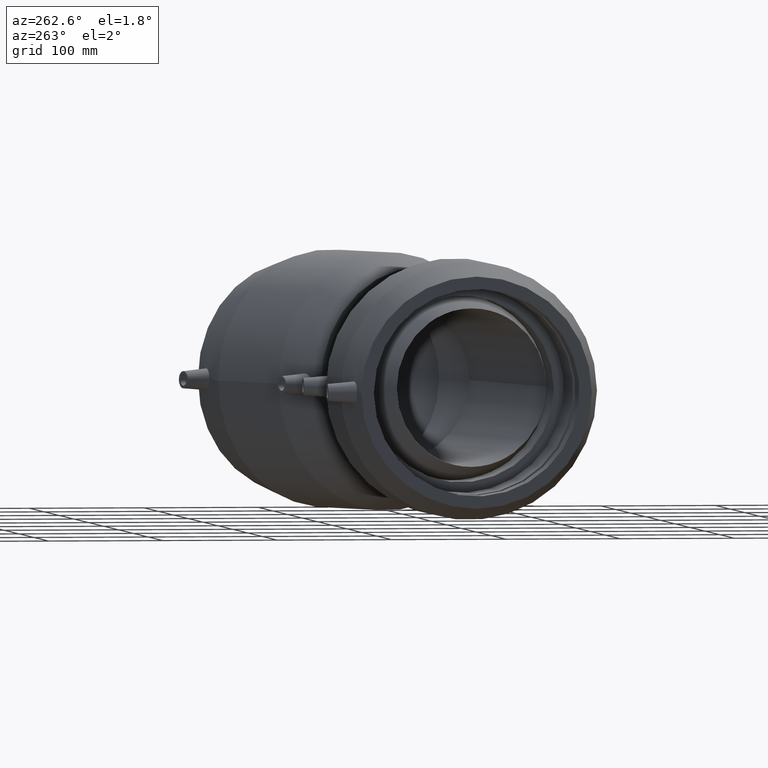
[diagram: clean part render]
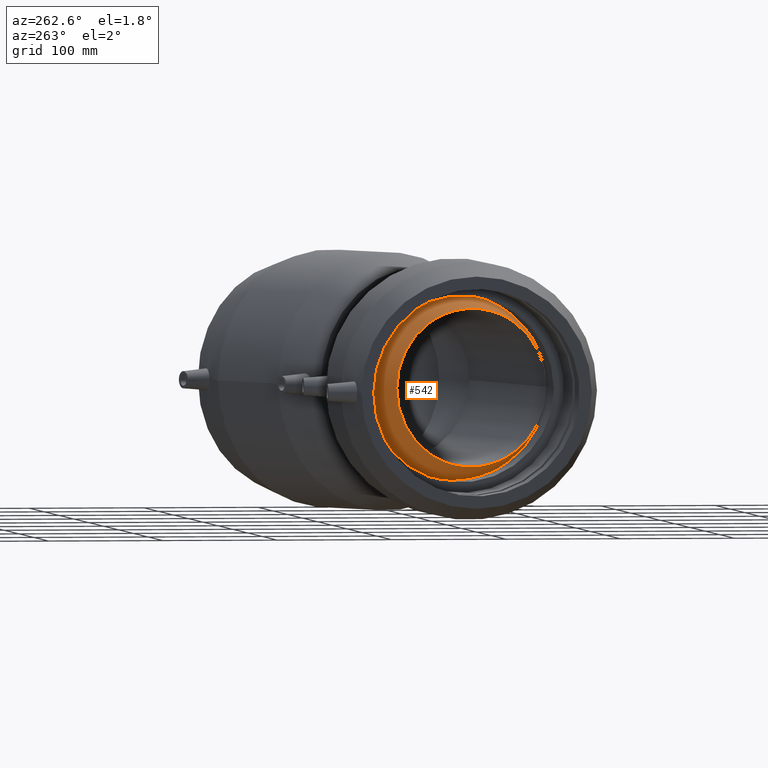
[diagram: same view with one face highlighted and labeled with its STEP entity id]
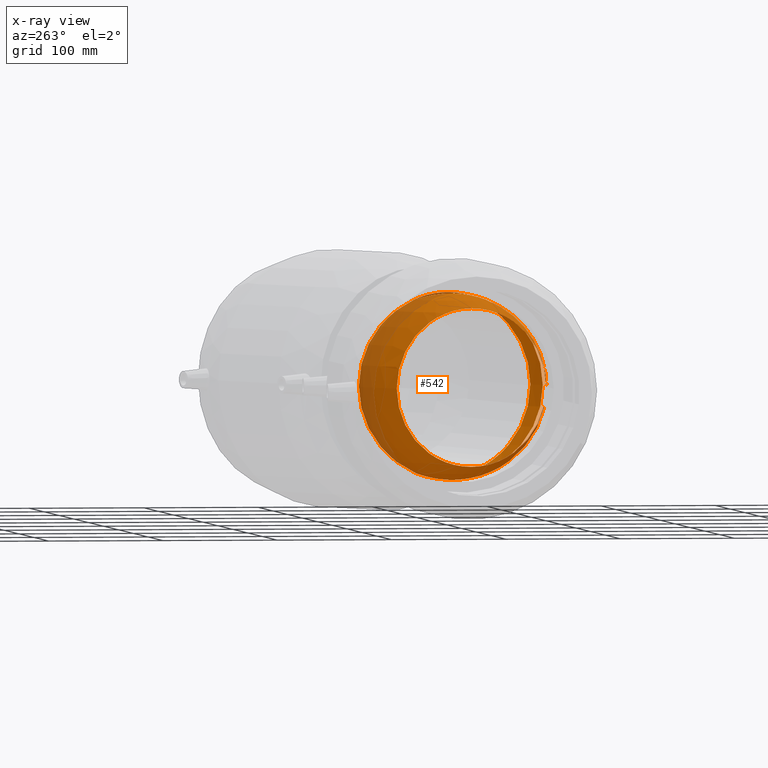
[diagram: x-ray of the same camera — body ghosted, the highlighted face saturated]
A machine part, auxiliary view. The second image highlights one B-rep face of the part: STEP entity #542.
The next image is the same camera in x-ray: the body ghosted, the highlighted face saturated — about 23% of this face is hidden behind the body in this view.
In plain terms, the highlighted spherical surface has radius 82.6012 mm.
Its self-contained STEP definition (entity closure, byte-faithful):
#64=FACE_BOUND('',#166,.T.);
#114=FACE_OUTER_BOUND('',#165,.T.);
#165=EDGE_LOOP('',(#432,#433,#434,#435));
#166=EDGE_LOOP('',(#436));
#265=B_SPLINE_CURVE_WITH_KNOTS('',3,(#1003,#1004,#1005,#1006,#1007,#1008,
#1009,#1010,#1011,#1012,#1013,#1014,#1015,#1016,#1017,#1018,#1019,#1020,
#1021,#1022,#1023,#1024,#1025,#1026,#1027,#1028,#1029,#1030,#1031,#1032,
#1033,#1034,#1035,#1036,#1037,#1038,#1039,#1040,#1041,#1042,#1043,#1044,
#1045,#1046,#1047,#1048,#1049,#1050,#1051,#1052),.UNSPECIFIED.,.F.,.F.,
(4,2,2,2,2,2,2,2,2,2,2,2,2,2,2,2,2,2,2,2,2,2,2,2,4),(7.87289258377218,8.43611073392782,
9.62037564785383,10.5636150040492,11.5068543602446,11.8510884296854,12.1953224991262,
12.5573321708885,12.7383370067697,12.9193418426509,13.100346678532,13.2813515144132,
13.6433611861755,13.9875952556163,14.3318293250571,15.2750686812525,16.2183080374479,
17.4025729513739,18.5868378652999,19.7711027792259,20.9553676931519,22.8672593641524,
24.7791510351528,26.6910427061533,28.6029343771538),.UNSPECIFIED.);
#266=B_SPLINE_CURVE_WITH_KNOTS('',3,(#1055,#1056,#1057,#1058,#1059,#1060,
#1061,#1062,#1063,#1064,#1065,#1066,#1067,#1068,#1069,#1070,#1071,#1072,
#1073,#1074,#1075,#1076,#1077,#1078,#1079,#1080,#1081,#1082,#1083,#1084,
#1085,#1086,#1087,#1088,#1089,#1090,#1091,#1092,#1093,#1094,#1095,#1096,
#1097,#1098,#1099,#1100,#1101,#1102,#1103,#1104),.UNSPECIFIED.,.F.,.F.,
(4,2,2,2,2,2,2,2,2,2,2,2,2,2,2,2,2,2,2,2,2,2,2,2,4),(28.6029343771538,30.5148260481542,
32.4267177191547,34.3386093901551,36.2505010611556,37.4347659750816,38.6190308890076,
39.8032958029336,40.9875607168596,41.930800073055,42.8740394292504,43.2182734986912,
43.562507568132,43.9245172398943,44.1055220757755,44.2865269116567,44.4675317475378,
44.648536583419,45.0105462551813,45.3547803246221,45.6990143940629,46.6422537502583,
47.5854931064537,48.7697580203797,49.3329761705353),.UNSPECIFIED.);
#274=CIRCLE('',#598,68.7927887803867);
#275=CIRCLE('',#599,80.1980456608102);
#276=CIRCLE('',#600,78.8327887803868);
#323=VERTEX_POINT('',#1000);
#324=VERTEX_POINT('',#1002);
#325=VERTEX_POINT('',#1053);
#326=VERTEX_POINT('',#1105);
#376=EDGE_CURVE('',#323,#323,#274,.T.);
#377=EDGE_CURVE('',#324,#323,#265,.T.);
#378=EDGE_CURVE('',#325,#324,#275,.T.);
#379=EDGE_CURVE('',#323,#325,#266,.T.);
#380=EDGE_CURVE('',#326,#326,#276,.T.);
#432=ORIENTED_EDGE('',*,*,#376,.F.);
#433=ORIENTED_EDGE('',*,*,#377,.F.);
#434=ORIENTED_EDGE('',*,*,#378,.F.);
#435=ORIENTED_EDGE('',*,*,#379,.F.);
#436=ORIENTED_EDGE('',*,*,#380,.T.);
#540=SPHERICAL_SURFACE('',#597,82.601247811748);
#542=ADVANCED_FACE('',(#114,#64),#540,.T.);
#597=AXIS2_PLACEMENT_3D('',#999,#701,#702);
#598=AXIS2_PLACEMENT_3D('',#1001,#703,#704);
#599=AXIS2_PLACEMENT_3D('',#1054,#705,#706);
#600=AXIS2_PLACEMENT_3D('',#1106,#707,#708);
#701=DIRECTION('center_axis',(0.,0.,1.));
#702=DIRECTION('ref_axis',(1.,0.,0.));
#703=DIRECTION('center_axis',(-0.978147600733806,-0.20791169081776,0.));
#704=DIRECTION('ref_axis',(0.20791169081776,-0.978147600733806,0.));
#705=DIRECTION('center_axis',(-1.,-1.83697019872103E-16,0.));
#706=DIRECTION('ref_axis',(0.,0.,1.));
#707=DIRECTION('center_axis',(-0.978147600733806,-0.20791169081776,0.));
#708=DIRECTION('ref_axis',(0.20791169081776,-0.978147600733806,0.));
#999=CARTESIAN_POINT('Origin',(82.4202221386489,-4.20432157280557,0.));
#1000=CARTESIAN_POINT('',(52.,-81.,0.));
#1001=CARTESIAN_POINT('Origin',(37.6971749686008,-13.7104987066772,0.));
#1002=CARTESIAN_POINT('',(102.2,-17.4760409651648,79.0922751738997));
#1003=CARTESIAN_POINT('Ctrl Pts',(102.2,-17.4760409651648,79.0922751738998));
#1004=CARTESIAN_POINT('Ctrl Pts',(101.790783757352,-15.5508299087148,79.5176652289353));
#1005=CARTESIAN_POINT('Ctrl Pts',(101.367931826357,-13.6211983439746,79.8700609173904));
#1006=CARTESIAN_POINT('Ctrl Pts',(100.015199769927,-7.66508914496692,80.7396218241747));
#1007=CARTESIAN_POINT('Ctrl Pts',(99.0401566817941,-3.67195947412812,81.0064420597062));
#1008=CARTESIAN_POINT('Ctrl Pts',(97.1938827552907,3.17516193625318,80.9946533797427));
#1009=CARTESIAN_POINT('Ctrl Pts',(96.2360769918985,6.48862401184379,80.8059750955298));
#1010=CARTESIAN_POINT('Ctrl Pts',(94.0926668973314,12.9857345678923,80.0192385928339));
#1011=CARTESIAN_POINT('Ctrl Pts',(92.9061935288078,16.1691673276624,79.4217668841996));
#1012=CARTESIAN_POINT('Ctrl Pts',(91.1653973979791,19.9828154345938,78.5034208650217));
#1013=CARTESIAN_POINT('Ctrl Pts',(90.625749951853,21.0863681351453,78.2150959654008));
#1014=CARTESIAN_POINT('Ctrl Pts',(89.4448824827851,23.2252191488228,77.6068640799512));
#1015=CARTESIAN_POINT('Ctrl Pts',(88.8021529664736,24.2598176053637,77.2874279181065));
#1016=CARTESIAN_POINT('Ctrl Pts',(87.4546625003255,26.094733368341,76.6879647808268));
#1017=CARTESIAN_POINT('Ctrl Pts',(86.6201865756825,27.0634538322871,76.3491165557951));
#1018=CARTESIAN_POINT('Ctrl Pts',(85.1839311880465,28.1711252186478,75.9443364057777));
#1019=CARTESIAN_POINT('Ctrl Pts',(84.6744912784439,28.4825754359815,75.8274248076952));
#1020=CARTESIAN_POINT('Ctrl Pts',(83.5942655534702,28.9229974365402,75.6605291793384));
#1021=CARTESIAN_POINT('Ctrl Pts',(83.023571591586,29.0522282774889,75.6106343850696));
#1022=CARTESIAN_POINT('Ctrl Pts',(81.8168726857117,29.0522282774889,75.6106343850696));
#1023=CARTESIAN_POINT('Ctrl Pts',(81.2461787238276,28.92299743654,75.6605291793384));
#1024=CARTESIAN_POINT('Ctrl Pts',(80.1659529988539,28.4825754359813,75.8274248076953));
#1025=CARTESIAN_POINT('Ctrl Pts',(79.6565130892512,28.1711252186478,75.9443364057777));
#1026=CARTESIAN_POINT('Ctrl Pts',(78.2202577016152,27.0634538322871,76.3491165557951));
#1027=CARTESIAN_POINT('Ctrl Pts',(77.3857817769722,26.094733368341,76.6879647808268));
#1028=CARTESIAN_POINT('Ctrl Pts',(76.0382913108241,24.2598176053637,77.2874279181065));
#1029=CARTESIAN_POINT('Ctrl Pts',(75.3955617945126,23.2252191488228,77.6068640799512));
#1030=CARTESIAN_POINT('Ctrl Pts',(74.2146943254447,21.0863681351453,78.2150959654008));
#1031=CARTESIAN_POINT('Ctrl Pts',(73.6750468793186,19.9828154345938,78.5034208650217));
#1032=CARTESIAN_POINT('Ctrl Pts',(71.9342507484899,16.1691673276624,79.4217668841996));
#1033=CARTESIAN_POINT('Ctrl Pts',(70.7477773799663,12.9857345678923,80.0192385928339));
#1034=CARTESIAN_POINT('Ctrl Pts',(68.6043672853992,6.48862401184378,80.8059750955298));
#1035=CARTESIAN_POINT('Ctrl Pts',(67.646561522007,3.17516193625317,80.9946533797427));
#1036=CARTESIAN_POINT('Ctrl Pts',(65.8002875955036,-3.67195947412812,81.0064420597062));
#1037=CARTESIAN_POINT('Ctrl Pts',(64.8252445073705,-7.66508914496692,80.7396218241747));
#1038=CARTESIAN_POINT('Ctrl Pts',(62.9917582261005,-15.7379698416432,79.5610233088666));
#1039=CARTESIAN_POINT('Ctrl Pts',(62.1331897641037,-19.8176942130494,78.6492573359359));
#1040=CARTESIAN_POINT('Ctrl Pts',(60.5408985849245,-27.8024912144308,76.1936241273491));
#1041=CARTESIAN_POINT('Ctrl Pts',(59.8062943426065,-31.7115348341272,74.6485318487474));
#1042=CARTESIAN_POINT('Ctrl Pts',(58.4662498334413,-39.1328343778585,71.0397495981687));
#1043=CARTESIAN_POINT('Ctrl Pts',(57.8607360651287,-42.6450560934324,68.9760165718081));
#1044=CARTESIAN_POINT('Ctrl Pts',(56.4492502906889,-51.071482733906,63.1866975016027));
#1045=CARTESIAN_POINT('Ctrl Pts',(55.6700961713662,-55.9936293190988,58.8953623212608));
#1046=CARTESIAN_POINT('Ctrl Pts',(54.3299915441623,-64.7336623486843,49.1274178992186));
#1047=CARTESIAN_POINT('Ctrl Pts',(53.7685012165771,-68.5522775813989,43.6515348478051));
#1048=CARTESIAN_POINT('Ctrl Pts',(52.8754544207252,-74.7331471475275,31.9347539898723));
#1049=CARTESIAN_POINT('Ctrl Pts',(52.5427078711311,-77.1025850430768,25.6804156652636));
#1050=CARTESIAN_POINT('Ctrl Pts',(52.1049189746685,-80.2364733424462,12.8996401454391));
#1051=CARTESIAN_POINT('Ctrl Pts',(51.9999999999999,-80.9999999999999,6.37297223666819));
#1052=CARTESIAN_POINT('Ctrl Pts',(51.9999999999999,-80.9999999999999,1.11022302462516E-14));
#1053=CARTESIAN_POINT('',(102.2,-17.4760409651648,-79.0922751738997));
#1054=CARTESIAN_POINT('Origin',(102.2,-4.20432157280557,0.));
#1055=CARTESIAN_POINT('Ctrl Pts',(51.9999999999999,-80.9999999999999,6.66133814775094E-15));
#1056=CARTESIAN_POINT('Ctrl Pts',(51.9999999999999,-80.9999999999999,-6.37297223666817));
#1057=CARTESIAN_POINT('Ctrl Pts',(52.1049189746685,-80.2364733424462,-12.899640145439));
#1058=CARTESIAN_POINT('Ctrl Pts',(52.5427078711311,-77.1025850430768,-25.6804156652636));
#1059=CARTESIAN_POINT('Ctrl Pts',(52.8754544207252,-74.7331471475275,-31.9347539898723));
#1060=CARTESIAN_POINT('Ctrl Pts',(53.7685012165771,-68.5522775813989,-43.651534847805));
#1061=CARTESIAN_POINT('Ctrl Pts',(54.3299915441623,-64.7336623486843,-49.1274178992186));
#1062=CARTESIAN_POINT('Ctrl Pts',(55.6700961713662,-55.9936293190989,-58.8953623212608));
#1063=CARTESIAN_POINT('Ctrl Pts',(56.4492502906889,-51.0714827339061,-63.1866975016027));
#1064=CARTESIAN_POINT('Ctrl Pts',(57.8607360651287,-42.6450560934325,-68.9760165718081));
#1065=CARTESIAN_POINT('Ctrl Pts',(58.4662498334413,-39.1328343778586,-71.0397495981686));
#1066=CARTESIAN_POINT('Ctrl Pts',(59.8062943426065,-31.7115348341273,-74.6485318487474));
#1067=CARTESIAN_POINT('Ctrl Pts',(60.5408985849245,-27.8024912144308,-76.193624127349));
#1068=CARTESIAN_POINT('Ctrl Pts',(62.1331897641037,-19.8176942130495,-78.6492573359359));
#1069=CARTESIAN_POINT('Ctrl Pts',(62.9917582261005,-15.7379698416433,-79.5610233088665));
#1070=CARTESIAN_POINT('Ctrl Pts',(64.8252445073705,-7.66508914496696,-80.7396218241747));
#1071=CARTESIAN_POINT('Ctrl Pts',(65.8002875955036,-3.67195947412815,-81.0064420597062));
#1072=CARTESIAN_POINT('Ctrl Pts',(67.646561522007,3.17516193625316,-80.9946533797428));
#1073=CARTESIAN_POINT('Ctrl Pts',(68.6043672853992,6.4886240118438,-80.8059750955298));
#1074=CARTESIAN_POINT('Ctrl Pts',(70.7477773799663,12.9857345678923,-80.0192385928339));
#1075=CARTESIAN_POINT('Ctrl Pts',(71.9342507484899,16.1691673276624,-79.4217668841995));
#1076=CARTESIAN_POINT('Ctrl Pts',(73.6750468793186,19.9828154345938,-78.5034208650217));
#1077=CARTESIAN_POINT('Ctrl Pts',(74.2146943254448,21.0863681351453,-78.2150959654008));
#1078=CARTESIAN_POINT('Ctrl Pts',(75.3955617945127,23.2252191488228,-77.6068640799512));
#1079=CARTESIAN_POINT('Ctrl Pts',(76.0382913108241,24.2598176053637,-77.2874279181065));
#1080=CARTESIAN_POINT('Ctrl Pts',(77.3857817769722,26.0947333683411,-76.6879647808268));
#1081=CARTESIAN_POINT('Ctrl Pts',(78.2202577016152,27.0634538322871,-76.3491165557951));
#1082=CARTESIAN_POINT('Ctrl Pts',(79.6565130892512,28.1711252186479,-75.9443364057776));
#1083=CARTESIAN_POINT('Ctrl Pts',(80.165952998854,28.4825754359814,-75.8274248076953));
#1084=CARTESIAN_POINT('Ctrl Pts',(81.2461787238277,28.92299743654,-75.6605291793384));
#1085=CARTESIAN_POINT('Ctrl Pts',(81.8168726857117,29.0522282774889,-75.6106343850696));
#1086=CARTESIAN_POINT('Ctrl Pts',(83.023571591586,29.0522282774889,-75.6106343850696));
#1087=CARTESIAN_POINT('Ctrl Pts',(83.5942655534701,28.92299743654,-75.6605291793384));
#1088=CARTESIAN_POINT('Ctrl Pts',(84.6744912784438,28.4825754359814,-75.8274248076953));
#1089=CARTESIAN_POINT('Ctrl Pts',(85.1839311880465,28.1711252186479,-75.9443364057776));
#1090=CARTESIAN_POINT('Ctrl Pts',(86.6201865756825,27.0634538322871,-76.3491165557951));
#1091=CARTESIAN_POINT('Ctrl Pts',(87.4546625003255,26.0947333683411,-76.6879647808268));
#1092=CARTESIAN_POINT('Ctrl Pts',(88.8021529664736,24.2598176053637,-77.2874279181065));
#1093=CARTESIAN_POINT('Ctrl Pts',(89.444882482785,23.2252191488228,-77.6068640799512));
#1094=CARTESIAN_POINT('Ctrl Pts',(90.6257499518529,21.0863681351453,-78.2150959654008));
#1095=CARTESIAN_POINT('Ctrl Pts',(91.1653973979791,19.9828154345938,-78.5034208650217));
#1096=CARTESIAN_POINT('Ctrl Pts',(92.9061935288078,16.1691673276624,-79.4217668841995));
#1097=CARTESIAN_POINT('Ctrl Pts',(94.0926668973314,12.9857345678923,-80.0192385928339));
#1098=CARTESIAN_POINT('Ctrl Pts',(96.2360769918985,6.4886240118438,-80.8059750955298));
#1099=CARTESIAN_POINT('Ctrl Pts',(97.1938827552907,3.17516193625317,-80.9946533797428));
#1100=CARTESIAN_POINT('Ctrl Pts',(99.0401566817941,-3.67195947412815,-81.0064420597062));
#1101=CARTESIAN_POINT('Ctrl Pts',(100.015199769927,-7.66508914496695,-80.7396218241747));
#1102=CARTESIAN_POINT('Ctrl Pts',(101.367931826357,-13.6211983439746,-79.8700609173903));
#1103=CARTESIAN_POINT('Ctrl Pts',(101.790783757352,-15.5508299087148,-79.5176652289352));
#1104=CARTESIAN_POINT('Ctrl Pts',(102.2,-17.4760409651648,-79.0922751738997));
#1105=CARTESIAN_POINT('',(122.936398481565,-76.1863026139488,0.));
#1106=CARTESIAN_POINT('Origin',(106.546140074356,0.923800590741405,0.));